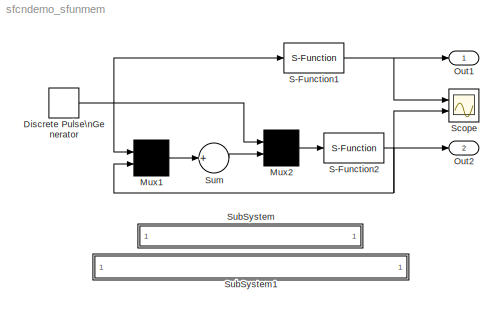
MODEL sfcndemo_sfunmem
KIND model
BLOCK [DiscretePulseGenerator] Discrete Pulse\nGenerator
  Period = 20
  Ports = [0, 1]
  PulseWidth = 10
  SampleTime = .01
BLOCK [Mux] Mux1
  Inputs = 2
  Ports = [2, 1]
BLOCK [Mux] Mux2
  Inputs = 2
  Ports = [2, 1]
BLOCK [Outport] Out1
  IconDisplay = Port number
BLOCK [Outport] Out2
  IconDisplay = Port number
  Port = 2
BLOCK [S-Function] S-Function1
  FunctionName = sfunmem
  MaskDescription = This is a S-function block which has one integration-step delay and hold \"memory\" function.
  MaskIconFrame = on
  MaskIconOpaque = on
  MaskIconRotate = none
  MaskIconUnits = autoscale
  MaskType = S-function: sfunmem
  Ports = [1, 1]
BLOCK [S-Function] S-Function2
  FunctionName = sfunmem
  MaskDescription = This is a S-function block which has one integration-step delay and hold \"memory\" function.
  MaskIconFrame = on
  MaskIconOpaque = on
  MaskIconRotate = none
  MaskIconUnits = autoscale
  MaskType = S-function: sfunmem
  Ports = [1, 1]
BLOCK [Scope] Scope
  DataFormat = StructureWithTime
  NumInputPorts = 2
  Ports = [2]
  TimeRange = 0.5
  YMax = 1~60
  YMin = 0~0
BLOCK [SubSystem] SubSystem
  MaskDisplay = disp('matlabroot<path>');
  MaskIconFrame = on
  MaskIconOpaque = on
  MaskIconRotate = none
  MaskIconUnits = autoscale
  MinAlgLoopOccurrences = off
  OpenFcn = edit(fullfile(matlabroot,'simulink','src','sfunmem.c'))
  Ports = []
  PropExecContextAcrossSSBoundary = on
  RTWSystemCode = Auto
  TreatAsAtomicUnit = off
BLOCK [SubSystem] SubSystem1
  MaskDisplay = disp('matlabroot<path>');
  MaskIconFrame = on
  MaskIconOpaque = on
  MaskIconRotate = none
  MaskIconUnits = autoscale
  MinAlgLoopOccurrences = off
  OpenFcn = edit(fullfile(matlabroot,'toolbox','simulink','blocks','tlc_c','sfunmem.tlc'))
  Ports = []
  PropExecContextAcrossSSBoundary = on
  RTWSystemCode = Auto
  TreatAsAtomicUnit = off
BLOCK [Sum] Sum
  Inputs = +
  Ports = [1, 1]
NET Discrete Pulse\nGenerator:1 -> Mux1:1, Mux2:1, S-Function1:1
LINE Mux1:1 -> Sum:1
LINE Mux2:1 -> S-Function2:1
NET S-Function1:1 -> Out1:1, Scope:1
NET S-Function2:1 -> Mux1:2, Out2:1, Scope:2
LINE Sum:1 -> Mux2:2
note: NET lines group one-source signal fan-out (src -> all destinations, sorted); 1:1 wires keep LINE
note: 2 file-system paths scrubbed to <path> (not preserved elsewhere — flat text is the only slx artifact)
